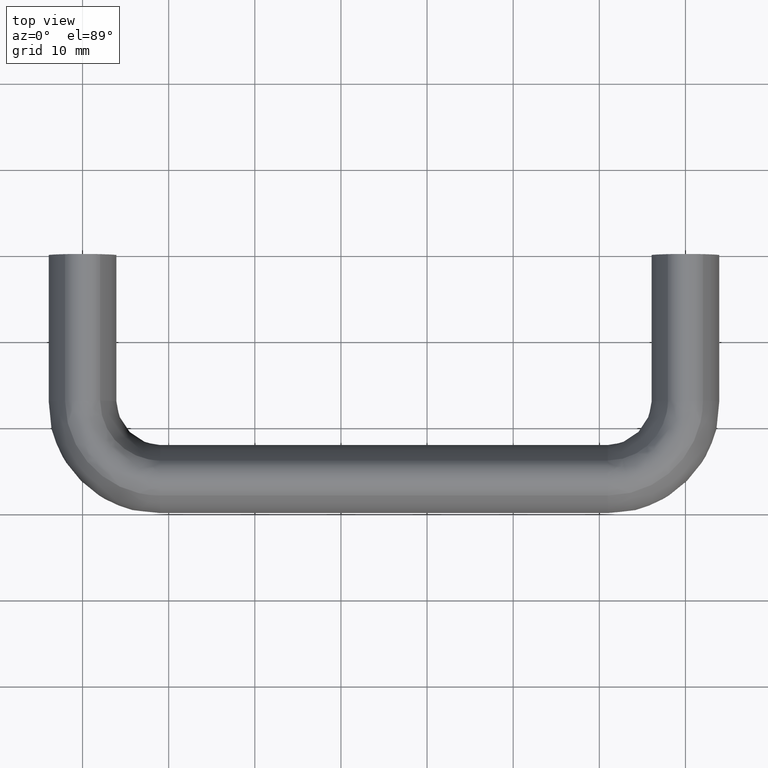
[diagram: clean part render]
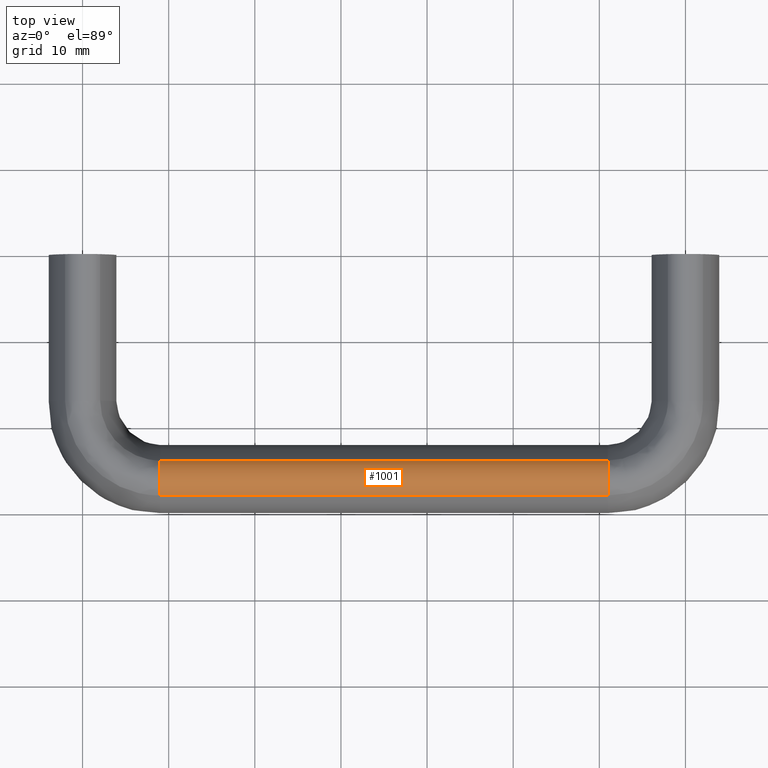
[diagram: same view with one face highlighted and labeled with its STEP entity id]
A machine part, top view. The second image highlights one B-rep face of the part: STEP entity #1001.
In plain terms, the highlighted face is a freeform B-spline surface patch.
Its self-contained STEP definition (entity closure, byte-faithful):
#742=CARTESIAN_POINT('',(61.0,-23.962264150943401,6.867924528301880));
#743=VERTEX_POINT('',#742);
#798=CARTESIAN_POINT('',(61.0,-28.037735849056599,6.867924528301880));
#799=VERTEX_POINT('',#798);
#800=CARTESIAN_POINT('',(61.0,-28.037735849056599,6.867924528301883));
#801=CARTESIAN_POINT('',(61.0,-27.333333333333339,8.0));
#802=CARTESIAN_POINT('',(61.0,-26.0,8.0));
#803=CARTESIAN_POINT('',(61.0,-24.666666666666668,8.0));
#804=CARTESIAN_POINT('',(61.0,-23.962264150943390,6.867924528301884));
#812=(BOUNDED_CURVE()B_SPLINE_CURVE(2,(#800,#801,#802,#803,#804),.UNSPECIFIED.,.F.,.U.)B_SPLINE_CURVE_WITH_KNOTS((3,2,3),(0.0,0.500000000000000,1.0),.UNSPECIFIED.)CURVE()GEOMETRIC_REPRESENTATION_ITEM()RATIONAL_B_SPLINE_CURVE((1.0,0.874157276121537,1.0,0.874157276121537,1.0))REPRESENTATION_ITEM(''));
#813=EDGE_CURVE('',#799,#743,#812,.T.);
#937=CARTESIAN_POINT('',(9.0,-23.962264150943401,6.867924528301880));
#938=VERTEX_POINT('',#937);
#952=CARTESIAN_POINT('',(9.0,-23.962264150943401,6.867924528301880));
#953=CARTESIAN_POINT('',(61.0,-23.962264150943401,6.867924528301880));
#954=QUASI_UNIFORM_CURVE('',1,(#952,#953),.UNSPECIFIED.,.F.,.U.);
#955=EDGE_CURVE('',#938,#743,#954,.T.);
#961=CARTESIAN_POINT('',(7.699999999999997,-28.070227962710369,6.814148336247299));
#962=CARTESIAN_POINT('',(62.332500000000010,-28.070227962710359,6.814148336247299));
#963=CARTESIAN_POINT('',(7.700000000000003,-25.924228043562021,10.473263872596590));
#964=CARTESIAN_POINT('',(62.332500000000017,-25.924228043562003,10.473263872596576));
#965=CARTESIAN_POINT('',(7.700000000000001,-23.893025523427639,6.749199092878435));
#966=CARTESIAN_POINT('',(62.332500000000010,-23.893025523427632,6.749199092878421));
#974=(BOUNDED_SURFACE()B_SPLINE_SURFACE(1,2,((#961,#963,#965),(#962,#964,#966)),.UNSPECIFIED.,.F.,.F.,.U.)B_SPLINE_SURFACE_WITH_KNOTS((2,2),(3,3),(0.0,54.632500000000007),(0.0,5.598554528611007),.UNSPECIFIED.)GEOMETRIC_REPRESENTATION_ITEM()RATIONAL_B_SPLINE_SURFACE(((1.0,0.492423560103467,1.0),(1.0,0.492423560103467,1.0)))REPRESENTATION_ITEM('')SURFACE());
#975=ORIENTED_EDGE('',*,*,#955,.F.);
#976=CARTESIAN_POINT('',(9.0,-28.037735849056599,6.867924528301880));
#977=VERTEX_POINT('',#976);
#978=CARTESIAN_POINT('',(9.0,-28.037735849056599,6.867924528301883));
#979=CARTESIAN_POINT('',(9.0,-27.333333333333339,8.0));
#980=CARTESIAN_POINT('',(9.0,-26.0,8.0));
#981=CARTESIAN_POINT('',(9.0,-24.666666666666668,8.0));
#982=CARTESIAN_POINT('',(9.0,-23.962264150943390,6.867924528301884));
#990=(BOUNDED_CURVE()B_SPLINE_CURVE(2,(#978,#979,#980,#981,#982),.UNSPECIFIED.,.F.,.U.)B_SPLINE_CURVE_WITH_KNOTS((3,2,3),(0.0,0.500000000000000,1.0),.UNSPECIFIED.)CURVE()GEOMETRIC_REPRESENTATION_ITEM()RATIONAL_B_SPLINE_CURVE((1.0,0.874157276121537,1.0,0.874157276121537,1.0))REPRESENTATION_ITEM(''));
#991=EDGE_CURVE('',#977,#938,#990,.T.);
#992=ORIENTED_EDGE('',*,*,#991,.F.);
#993=CARTESIAN_POINT('',(9.0,-28.037735849056599,6.867924528301880));
#994=CARTESIAN_POINT('',(61.0,-28.037735849056599,6.867924528301880));
#995=QUASI_UNIFORM_CURVE('',1,(#993,#994),.UNSPECIFIED.,.F.,.U.);
#996=EDGE_CURVE('',#977,#799,#995,.T.);
#997=ORIENTED_EDGE('',*,*,#996,.T.);
#998=ORIENTED_EDGE('',*,*,#813,.T.);
#999=EDGE_LOOP('',(#975,#992,#997,#998));
#1000=FACE_OUTER_BOUND('',#999,.T.);
#1001=ADVANCED_FACE('',(#1000),#974,.T.);